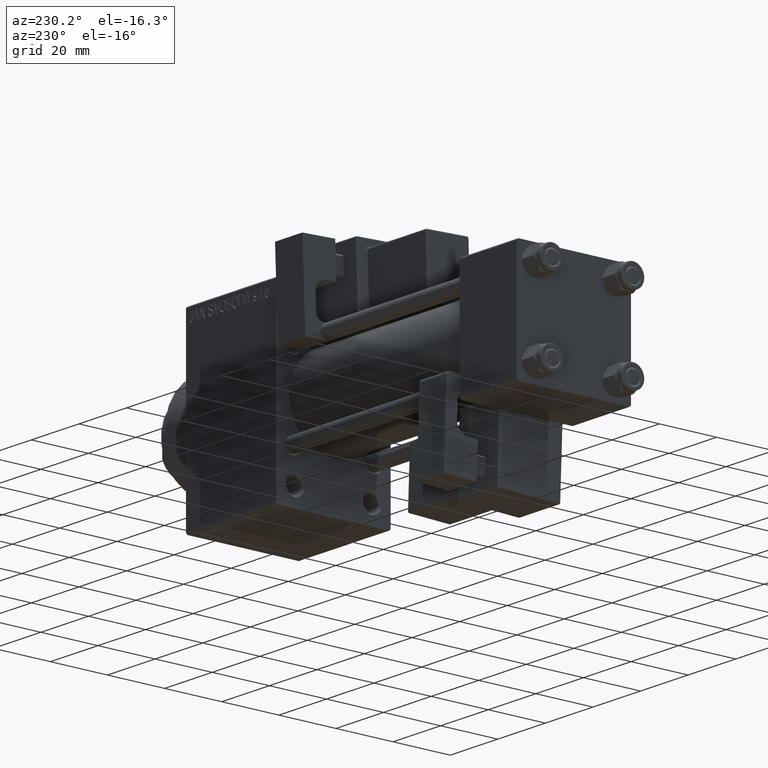
[diagram: clean part render]
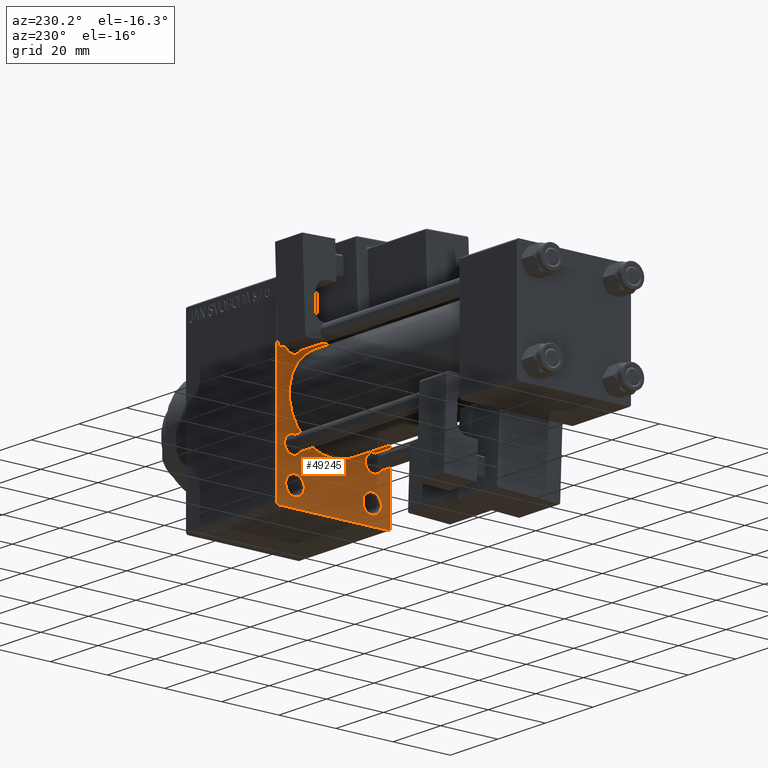
[diagram: same view with one face highlighted and labeled with its STEP entity id]
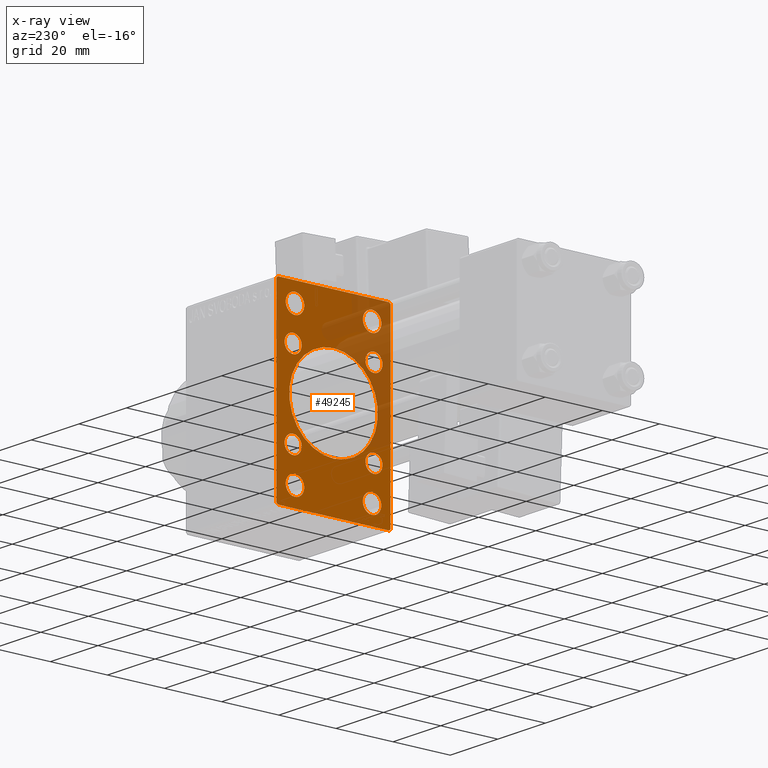
[diagram: x-ray of the same camera — body ghosted, the highlighted face saturated]
A machine part, auxiliary view. The second image highlights one B-rep face of the part: STEP entity #49245.
The next image is the same camera in x-ray: the body ghosted, the highlighted face saturated — about 26% of this face is hidden behind the body in this view.
In plain terms, the highlighted planar face has unit normal (-1, 0, 0).
Its self-contained STEP definition (entity closure, byte-faithful):
#191 = CARTESIAN_POINT ( 'NONE',  ( 101.0000000000000000, -14.15000000000000036, -11.14999999999999680 ) ) ;
#362 = ORIENTED_EDGE ( 'NONE', *, *, #22924, .T. ) ;
#535 = EDGE_CURVE ( 'NONE', #3971, #13510, #27942, .T. ) ;
#575 = ORIENTED_EDGE ( 'NONE', *, *, #25857, .F. ) ;
#1027 = AXIS2_PLACEMENT_3D ( 'NONE', #40263, #10536, #14042 ) ;
#1313 = CARTESIAN_POINT ( 'NONE',  ( 101.0000000000000000, -14.15000000000000036, 11.14999999999999503 ) ) ;
#1643 = DIRECTION ( 'NONE',  ( 1.000000000000000000, 0.000000000000000000, 0.000000000000000000 ) ) ;
#2455 = AXIS2_PLACEMENT_3D ( 'NONE', #40482, #6770, #29031 ) ;
#2719 = CARTESIAN_POINT ( 'NONE',  ( 101.0000000000000000, 14.15000000000000036, 11.14999999999999680 ) ) ;
#2819 = DIRECTION ( 'NONE',  ( -0.000000000000000000, -0.7071067811865474617, -0.7071067811865474617 ) ) ;
#2867 = DIRECTION ( 'NONE',  ( -1.000000000000000000, 0.000000000000000000, -0.000000000000000000 ) ) ;
#3022 = CARTESIAN_POINT ( 'NONE',  ( 101.0000000000000000, -13.50000000000000533, -25.49999999999999645 ) ) ;
#3181 = EDGE_CURVE ( 'NONE', #47418, #41160, #27229, .T. ) ;
#3474 = VERTEX_POINT ( 'NONE', #40043 ) ;
#3654 = EDGE_CURVE ( 'NONE', #44871, #9551, #16838, .T. ) ;
#3781 = VERTEX_POINT ( 'NONE', #191 ) ;
#3858 = VECTOR ( 'NONE', #24635, 1000.000000000000000 ) ;
#3971 = VERTEX_POINT ( 'NONE', #45310 ) ;
#4657 = EDGE_CURVE ( 'NONE', #13362, #37885, #31920, .T. ) ;
#4692 = CARTESIAN_POINT ( 'NONE',  ( 101.0000000000000000, 13.49999999999999822, 25.50000000000000355 ) ) ;
#5293 = VERTEX_POINT ( 'NONE', #36551 ) ;
#5330 = DIRECTION ( 'NONE',  ( 0.000000000000000000, -1.000000000000000000, 0.000000000000000000 ) ) ;
#6722 = EDGE_LOOP ( 'NONE', ( #28576, #18455 ) ) ;
#6770 = DIRECTION ( 'NONE',  ( 1.000000000000000000, 0.000000000000000000, 0.000000000000000000 ) ) ;
#6942 = LINE ( 'NONE', #33690, #21190 ) ;
#7095 = FACE_BOUND ( 'NONE', #45889, .T. ) ;
#7475 = CARTESIAN_POINT ( 'NONE',  ( 101.0000000000000000, 19.50000000000000000, 32.00000000000000000 ) ) ;
#7759 = DIRECTION ( 'NONE',  ( 0.000000000000000000, 0.000000000000000000, 1.000000000000000000 ) ) ;
#7809 = EDGE_LOOP ( 'NONE', ( #362, #48441 ) ) ;
#7892 = CIRCLE ( 'NONE', #41365, 3.249999999999961364 ) ;
#7925 = EDGE_LOOP ( 'NONE', ( #18374, #24016 ) ) ;
#8032 = CARTESIAN_POINT ( 'NONE',  ( 101.0000000000000000, -14.15000000000000036, 17.15000000000000568 ) ) ;
#8182 = CIRCLE ( 'NONE', #40051, 3.000000000000004441 ) ;
#8191 = EDGE_CURVE ( 'NONE', #34086, #36493, #34441, .T. ) ;
#8471 = LINE ( 'NONE', #13389, #25792 ) ;
#8723 = CARTESIAN_POINT ( 'NONE',  ( 101.0000000000000000, -14.15000000000000036, -14.15000000000000036 ) ) ;
#9329 = AXIS2_PLACEMENT_3D ( 'NONE', #18513, #14769, #7759 ) ;
#9381 = ORIENTED_EDGE ( 'NONE', *, *, #3654, .T. ) ;
#9551 = VERTEX_POINT ( 'NONE', #38228 ) ;
#9694 = DIRECTION ( 'NONE',  ( 1.000000000000000000, 0.000000000000000000, 0.000000000000000000 ) ) ;
#9913 = CIRCLE ( 'NONE', #16306, 3.000000000000004441 ) ;
#10038 = CARTESIAN_POINT ( 'NONE',  ( 101.0000000000000000, 20.00000000000000000, 31.50000000000000000 ) ) ;
#10317 = VERTEX_POINT ( 'NONE', #32365 ) ;
#10325 = VECTOR ( 'NONE', #5330, 1000.000000000000000 ) ;
#10536 = DIRECTION ( 'NONE',  ( 1.000000000000000000, 0.000000000000000000, 0.000000000000000000 ) ) ;
#11163 = CARTESIAN_POINT ( 'NONE',  ( 101.0000000000000000, 13.49999999999999822, -28.75000000000000000 ) ) ;
#11186 = DIRECTION ( 'NONE',  ( 1.000000000000000000, 0.000000000000000000, 0.000000000000000000 ) ) ;
#11378 = CIRCLE ( 'NONE', #44781, 3.000000000000004441 ) ;
#11554 = EDGE_CURVE ( 'NONE', #5293, #38570, #18044, .T. ) ;
#11638 = CIRCLE ( 'NONE', #23657, 3.249999999999961364 ) ;
#12274 = ORIENTED_EDGE ( 'NONE', *, *, #535, .T. ) ;
#12659 = DIRECTION ( 'NONE',  ( 0.000000000000000000, -1.000000000000000000, -1.734723475976807094E-16 ) ) ;
#12712 = CARTESIAN_POINT ( 'NONE',  ( 101.0000000000000000, 13.49999999999999822, -25.50000000000000000 ) ) ;
#12742 = CARTESIAN_POINT ( 'NONE',  ( 101.0000000000000000, -20.00000000000000000, 31.49999999999999289 ) ) ;
#12844 = CARTESIAN_POINT ( 'NONE',  ( 101.0000000000000000, -13.50000000000000178, 25.50000000000000355 ) ) ;
#12869 = EDGE_CURVE ( 'NONE', #48114, #29176, #29036, .T. ) ;
#12900 = AXIS2_PLACEMENT_3D ( 'NONE', #42750, #26615, #23549 ) ;
#13362 = VERTEX_POINT ( 'NONE', #27326 ) ;
#13389 = CARTESIAN_POINT ( 'NONE',  ( 101.0000000000000000, 20.00000000000000000, 32.00000000000000000 ) ) ;
#13510 = VERTEX_POINT ( 'NONE', #46632 ) ;
#13602 = CIRCLE ( 'NONE', #2455, 3.250000000000002665 ) ;
#14042 = DIRECTION ( 'NONE',  ( 0.000000000000000000, 0.000000000000000000, 1.000000000000000000 ) ) ;
#14355 = DIRECTION ( 'NONE',  ( -0.000000000000000000, 0.000000000000000000, 1.000000000000000000 ) ) ;
#14479 = EDGE_CURVE ( 'NONE', #17905, #28100, #6942, .T. ) ;
#14597 = FACE_BOUND ( 'NONE', #47766, .T. ) ;
#14735 = VECTOR ( 'NONE', #35324, 1000.000000000000114 ) ;
#14769 = DIRECTION ( 'NONE',  ( 1.000000000000000000, 0.000000000000000000, 0.000000000000000000 ) ) ;
#14784 = DIRECTION ( 'NONE',  ( 0.000000000000000000, 0.000000000000000000, 1.000000000000000000 ) ) ;
#15021 = CIRCLE ( 'NONE', #34975, 3.000000000000004441 ) ;
#15082 = FACE_BOUND ( 'NONE', #33617, .T. ) ;
#15198 = CARTESIAN_POINT ( 'NONE',  ( 101.0000000000000000, 14.15000000000000036, 14.15000000000000036 ) ) ;
#15863 = EDGE_CURVE ( 'NONE', #10317, #28487, #11638, .T. ) ;
#16306 = AXIS2_PLACEMENT_3D ( 'NONE', #24537, #43729, #16777 ) ;
#16405 = LINE ( 'NONE', #46856, #27966 ) ;
#16670 = CARTESIAN_POINT ( 'NONE',  ( 101.0000000000000000, -14.15000000000000036, -14.15000000000000036 ) ) ;
#16777 = DIRECTION ( 'NONE',  ( 0.000000000000000000, 0.000000000000000000, 1.000000000000000000 ) ) ;
#16824 = CARTESIAN_POINT ( 'NONE',  ( 101.0000000000000000, 20.00000000000000000, -32.00000000000000000 ) ) ;
#16838 = CIRCLE ( 'NONE', #47007, 3.250000000000002665 ) ;
#17305 = CARTESIAN_POINT ( 'NONE',  ( 101.0000000000000000, -2.602085213965210642E-15, 0.000000000000000000 ) ) ;
#17753 = EDGE_CURVE ( 'NONE', #41160, #47418, #25323, .T. ) ;
#17905 = VERTEX_POINT ( 'NONE', #12742 ) ;
#18044 = LINE ( 'NONE', #45484, #37697 ) ;
#18374 = ORIENTED_EDGE ( 'NONE', *, *, #24400, .T. ) ;
#18455 = ORIENTED_EDGE ( 'NONE', *, *, #12869, .T. ) ;
#18513 = CARTESIAN_POINT ( 'NONE',  ( 101.0000000000000000, 14.15000000000000036, -14.15000000000000036 ) ) ;
#18530 = DIRECTION ( 'NONE',  ( 1.000000000000000000, 0.000000000000000000, 0.000000000000000000 ) ) ;
#18946 = DIRECTION ( 'NONE',  ( 1.000000000000000000, 0.000000000000000000, 0.000000000000000000 ) ) ;
#19557 = CARTESIAN_POINT ( 'NONE',  ( 101.0000000000000000, -2.602085213965210642E-15, 0.000000000000000000 ) ) ;
#19879 = CARTESIAN_POINT ( 'NONE',  ( 101.0000000000000000, -19.50000000000000000, -32.00000000000000000 ) ) ;
#20868 = DIRECTION ( 'NONE',  ( 1.000000000000000000, 0.000000000000000000, 0.000000000000000000 ) ) ;
#21019 = CARTESIAN_POINT ( 'NONE',  ( 101.0000000000000000, 13.49999999999999822, 28.75000000000000711 ) ) ;
#21026 = DIRECTION ( 'NONE',  ( 1.000000000000000000, 0.000000000000000000, 0.000000000000000000 ) ) ;
#21141 = DIRECTION ( 'NONE',  ( 0.000000000000000000, 0.000000000000000000, 1.000000000000000000 ) ) ;
#21190 = VECTOR ( 'NONE', #22195, 1000.000000000000114 ) ;
#22195 = DIRECTION ( 'NONE',  ( -0.000000000000000000, 0.7071067811865474617, 0.7071067811865474617 ) ) ;
#22218 = VERTEX_POINT ( 'NONE', #43021 ) ;
#22317 = VECTOR ( 'NONE', #44748, 1000.000000000000000 ) ;
#22345 = FACE_BOUND ( 'NONE', #6722, .T. ) ;
#22357 = AXIS2_PLACEMENT_3D ( 'NONE', #3022, #21026, #36247 ) ;
#22924 = EDGE_CURVE ( 'NONE', #3781, #3474, #29386, .T. ) ;
#23549 = DIRECTION ( 'NONE',  ( 0.000000000000000000, 0.000000000000000000, 1.000000000000000000 ) ) ;
#23657 = AXIS2_PLACEMENT_3D ( 'NONE', #12844, #39806, #35819 ) ;
#23782 = EDGE_CURVE ( 'NONE', #36493, #34086, #15021, .T. ) ;
#24016 = ORIENTED_EDGE ( 'NONE', *, *, #15863, .T. ) ;
#24181 = CIRCLE ( 'NONE', #1027, 3.250000000000002665 ) ;
#24328 = ORIENTED_EDGE ( 'NONE', *, *, #25929, .T. ) ;
#24400 = EDGE_CURVE ( 'NONE', #28487, #10317, #7892, .T. ) ;
#24537 = CARTESIAN_POINT ( 'NONE',  ( 101.0000000000000000, -14.15000000000000036, 14.15000000000000036 ) ) ;
#24635 = DIRECTION ( 'NONE',  ( 0.000000000000000000, -0.7071067811865524577, 0.7071067811865426878 ) ) ;
#25125 = LINE ( 'NONE', #40328, #3858 ) ;
#25173 = CARTESIAN_POINT ( 'NONE',  ( 101.0000000000000000, -14.15000000000000036, 14.15000000000000036 ) ) ;
#25323 = CIRCLE ( 'NONE', #9329, 3.000000000000004441 ) ;
#25537 = CIRCLE ( 'NONE', #44641, 3.250000000000002665 ) ;
#25756 = EDGE_CURVE ( 'NONE', #38570, #35248, #40030, .T. ) ;
#25792 = VECTOR ( 'NONE', #43844, 1000.000000000000000 ) ;
#25857 = EDGE_CURVE ( 'NONE', #17905, #22218, #28084, .T. ) ;
#25863 = CARTESIAN_POINT ( 'NONE',  ( 101.0000000000000000, 0.000000000000000000, 0.000000000000000000 ) ) ;
#25929 = EDGE_CURVE ( 'NONE', #9551, #44871, #25537, .T. ) ;
#26113 = ORIENTED_EDGE ( 'NONE', *, *, #35038, .T. ) ;
#26203 = ORIENTED_EDGE ( 'NONE', *, *, #41212, .T. ) ;
#26615 = DIRECTION ( 'NONE',  ( 1.000000000000000000, 0.000000000000000000, 0.000000000000000000 ) ) ;
#27143 = ORIENTED_EDGE ( 'NONE', *, *, #11554, .T. ) ;
#27222 = EDGE_CURVE ( 'NONE', #40852, #28100, #16405, .T. ) ;
#27229 = CIRCLE ( 'NONE', #35168, 3.000000000000004441 ) ;
#27320 = DIRECTION ( 'NONE',  ( 0.000000000000000000, 0.000000000000000000, -1.000000000000000000 ) ) ;
#27326 = CARTESIAN_POINT ( 'NONE',  ( 101.0000000000000000, -13.50000000000000533, -28.74999999999999645 ) ) ;
#27740 = VERTEX_POINT ( 'NONE', #1313 ) ;
#27762 = EDGE_LOOP ( 'NONE', ( #35245, #43820 ) ) ;
#27793 = EDGE_CURVE ( 'NONE', #29176, #48114, #13602, .T. ) ;
#27942 = CIRCLE ( 'NONE', #41452, 15.50000000000000000 ) ;
#27966 = VECTOR ( 'NONE', #12659, 1000.000000000000000 ) ;
#27973 = DIRECTION ( 'NONE',  ( 0.000000000000000000, 0.000000000000000000, 1.000000000000000000 ) ) ;
#28084 = LINE ( 'NONE', #44260, #22317 ) ;
#28100 = VERTEX_POINT ( 'NONE', #41101 ) ;
#28371 = DIRECTION ( 'NONE',  ( 0.000000000000000000, 0.000000000000000000, 1.000000000000000000 ) ) ;
#28373 = DIRECTION ( 'NONE',  ( 0.000000000000000000, 0.000000000000000000, 1.000000000000000000 ) ) ;
#28454 = EDGE_CURVE ( 'NONE', #13510, #3971, #48698, .T. ) ;
#28487 = VERTEX_POINT ( 'NONE', #34053 ) ;
#28576 = ORIENTED_EDGE ( 'NONE', *, *, #27793, .T. ) ;
#29031 = DIRECTION ( 'NONE',  ( 0.000000000000000000, 0.000000000000000000, 1.000000000000000000 ) ) ;
#29036 = CIRCLE ( 'NONE', #48956, 3.250000000000002665 ) ;
#29176 = VERTEX_POINT ( 'NONE', #21019 ) ;
#29304 = DIRECTION ( 'NONE',  ( 1.000000000000000000, 0.000000000000000000, 0.000000000000000000 ) ) ;
#29351 = CARTESIAN_POINT ( 'NONE',  ( 101.0000000000000000, 14.15000000000000036, -14.15000000000000036 ) ) ;
#29386 = CIRCLE ( 'NONE', #29419, 3.000000000000004441 ) ;
#29419 = AXIS2_PLACEMENT_3D ( 'NONE', #16670, #39889, #36145 ) ;
#29462 = ORIENTED_EDGE ( 'NONE', *, *, #25756, .T. ) ;
#29848 = PLANE ( 'NONE',  #31795 ) ;
#29962 = DIRECTION ( 'NONE',  ( 0.000000000000000000, 0.000000000000000000, 1.000000000000000000 ) ) ;
#29968 = CARTESIAN_POINT ( 'NONE',  ( 101.0000000000000000, 14.15000000000000036, -17.15000000000000568 ) ) ;
#30847 = ORIENTED_EDGE ( 'NONE', *, *, #8191, .T. ) ;
#31795 = AXIS2_PLACEMENT_3D ( 'NONE', #25863, #2867, #14355 ) ;
#31831 = LINE ( 'NONE', #39545, #14735 ) ;
#31920 = CIRCLE ( 'NONE', #22357, 3.250000000000002665 ) ;
#32365 = CARTESIAN_POINT ( 'NONE',  ( 101.0000000000000000, -13.50000000000000178, 22.25000000000003908 ) ) ;
#33084 = ORIENTED_EDGE ( 'NONE', *, *, #23782, .T. ) ;
#33092 = EDGE_CURVE ( 'NONE', #40380, #5293, #8471, .T. ) ;
#33106 = EDGE_CURVE ( 'NONE', #3474, #3781, #11378, .T. ) ;
#33348 = FACE_OUTER_BOUND ( 'NONE', #47955, .T. ) ;
#33617 = EDGE_LOOP ( 'NONE', ( #33084, #30847 ) ) ;
#33690 = CARTESIAN_POINT ( 'NONE',  ( 101.0000000000000000, -25.75000000000000000, 25.75000000000000000 ) ) ;
#33832 = FACE_BOUND ( 'NONE', #7925, .T. ) ;
#33833 = CARTESIAN_POINT ( 'NONE',  ( 101.0000000000000000, 14.15000000000000036, 17.15000000000000568 ) ) ;
#34053 = CARTESIAN_POINT ( 'NONE',  ( 101.0000000000000000, -13.50000000000000178, 28.74999999999996447 ) ) ;
#34086 = VERTEX_POINT ( 'NONE', #2719 ) ;
#34441 = CIRCLE ( 'NONE', #12900, 3.000000000000004441 ) ;
#34685 = ORIENTED_EDGE ( 'NONE', *, *, #49160, .T. ) ;
#34821 = ORIENTED_EDGE ( 'NONE', *, *, #33092, .T. ) ;
#34975 = AXIS2_PLACEMENT_3D ( 'NONE', #15198, #18946, #29962 ) ;
#35038 = EDGE_CURVE ( 'NONE', #27740, #43277, #8182, .T. ) ;
#35168 = AXIS2_PLACEMENT_3D ( 'NONE', #29351, #20868, #28371 ) ;
#35245 = ORIENTED_EDGE ( 'NONE', *, *, #17753, .T. ) ;
#35248 = VERTEX_POINT ( 'NONE', #19879 ) ;
#35324 = DIRECTION ( 'NONE',  ( 0.000000000000000000, 0.7071067811865474617, -0.7071067811865474617 ) ) ;
#35676 = EDGE_CURVE ( 'NONE', #37885, #13362, #24181, .T. ) ;
#35819 = DIRECTION ( 'NONE',  ( 0.000000000000000000, 0.000000000000000000, 1.000000000000000000 ) ) ;
#36145 = DIRECTION ( 'NONE',  ( 0.000000000000000000, 0.000000000000000000, 1.000000000000000000 ) ) ;
#36247 = DIRECTION ( 'NONE',  ( 0.000000000000000000, 0.000000000000000000, 1.000000000000000000 ) ) ;
#36493 = VERTEX_POINT ( 'NONE', #33833 ) ;
#36551 = CARTESIAN_POINT ( 'NONE',  ( 101.0000000000000000, 20.00000000000000000, -31.50000000000000000 ) ) ;
#36824 = FACE_BOUND ( 'NONE', #27762, .T. ) ;
#36899 = CARTESIAN_POINT ( 'NONE',  ( 101.0000000000000000, 14.15000000000000036, -11.14999999999999680 ) ) ;
#37226 = ORIENTED_EDGE ( 'NONE', *, *, #28454, .T. ) ;
#37697 = VECTOR ( 'NONE', #2819, 1000.000000000000114 ) ;
#37783 = DIRECTION ( 'NONE',  ( 1.000000000000000000, 0.000000000000000000, 0.000000000000000000 ) ) ;
#37885 = VERTEX_POINT ( 'NONE', #43769 ) ;
#38228 = CARTESIAN_POINT ( 'NONE',  ( 101.0000000000000000, 13.49999999999999822, -22.24999999999999645 ) ) ;
#38570 = VERTEX_POINT ( 'NONE', #40586 ) ;
#39191 = DIRECTION ( 'NONE',  ( 1.000000000000000000, 0.000000000000000000, 0.000000000000000000 ) ) ;
#39545 = CARTESIAN_POINT ( 'NONE',  ( 101.0000000000000000, 25.75000000000000000, 25.75000000000000000 ) ) ;
#39714 = ORIENTED_EDGE ( 'NONE', *, *, #4657, .T. ) ;
#39798 = EDGE_CURVE ( 'NONE', #43277, #27740, #9913, .T. ) ;
#39806 = DIRECTION ( 'NONE',  ( 1.000000000000000000, 0.000000000000000000, 0.000000000000000000 ) ) ;
#39889 = DIRECTION ( 'NONE',  ( 1.000000000000000000, 0.000000000000000000, 0.000000000000000000 ) ) ;
#40030 = LINE ( 'NONE', #16824, #10325 ) ;
#40043 = CARTESIAN_POINT ( 'NONE',  ( 101.0000000000000000, -14.15000000000000036, -17.15000000000000568 ) ) ;
#40051 = AXIS2_PLACEMENT_3D ( 'NONE', #25173, #41116, #47856 ) ;
#40140 = ORIENTED_EDGE ( 'NONE', *, *, #27222, .F. ) ;
#40263 = CARTESIAN_POINT ( 'NONE',  ( 101.0000000000000000, -13.50000000000000533, -25.49999999999999645 ) ) ;
#40275 = DIRECTION ( 'NONE',  ( 0.000000000000000000, 0.000000000000000000, -1.000000000000000000 ) ) ;
#40328 = CARTESIAN_POINT ( 'NONE',  ( 101.0000000000000000, -25.74999999999986500, -25.75000000000022027 ) ) ;
#40380 = VERTEX_POINT ( 'NONE', #10038 ) ;
#40482 = CARTESIAN_POINT ( 'NONE',  ( 101.0000000000000000, 13.49999999999999822, 25.50000000000000355 ) ) ;
#40586 = CARTESIAN_POINT ( 'NONE',  ( 101.0000000000000000, 19.50000000000000000, -32.00000000000000000 ) ) ;
#40606 = ORIENTED_EDGE ( 'NONE', *, *, #39798, .T. ) ;
#40852 = VERTEX_POINT ( 'NONE', #7475 ) ;
#41101 = CARTESIAN_POINT ( 'NONE',  ( 101.0000000000000000, -19.50000000000000000, 31.99999999999999289 ) ) ;
#41116 = DIRECTION ( 'NONE',  ( 1.000000000000000000, 0.000000000000000000, 0.000000000000000000 ) ) ;
#41160 = VERTEX_POINT ( 'NONE', #36899 ) ;
#41212 = EDGE_CURVE ( 'NONE', #40852, #40380, #31831, .T. ) ;
#41365 = AXIS2_PLACEMENT_3D ( 'NONE', #47074, #1643, #28373 ) ;
#41452 = AXIS2_PLACEMENT_3D ( 'NONE', #17305, #29304, #40275 ) ;
#41659 = DIRECTION ( 'NONE',  ( 0.000000000000000000, 0.000000000000000000, 1.000000000000000000 ) ) ;
#41741 = CARTESIAN_POINT ( 'NONE',  ( 101.0000000000000000, 13.49999999999999822, 22.25000000000000355 ) ) ;
#42750 = CARTESIAN_POINT ( 'NONE',  ( 101.0000000000000000, 14.15000000000000036, 14.15000000000000036 ) ) ;
#43021 = CARTESIAN_POINT ( 'NONE',  ( 101.0000000000000000, -20.00000000000000000, -31.50000000000000711 ) ) ;
#43277 = VERTEX_POINT ( 'NONE', #8032 ) ;
#43729 = DIRECTION ( 'NONE',  ( 1.000000000000000000, 0.000000000000000000, 0.000000000000000000 ) ) ;
#43769 = CARTESIAN_POINT ( 'NONE',  ( 101.0000000000000000, -13.50000000000000533, -22.24999999999999289 ) ) ;
#43820 = ORIENTED_EDGE ( 'NONE', *, *, #3181, .T. ) ;
#43844 = DIRECTION ( 'NONE',  ( 0.000000000000000000, 0.000000000000000000, -1.000000000000000000 ) ) ;
#44260 = CARTESIAN_POINT ( 'NONE',  ( 101.0000000000000000, -20.00000000000000000, 31.99999999999999289 ) ) ;
#44641 = AXIS2_PLACEMENT_3D ( 'NONE', #49221, #18530, #14784 ) ;
#44748 = DIRECTION ( 'NONE',  ( 0.000000000000000000, 0.000000000000000000, -1.000000000000000000 ) ) ;
#44781 = AXIS2_PLACEMENT_3D ( 'NONE', #8723, #39191, #21141 ) ;
#44859 = ORIENTED_EDGE ( 'NONE', *, *, #14479, .T. ) ;
#44871 = VERTEX_POINT ( 'NONE', #11163 ) ;
#45310 = CARTESIAN_POINT ( 'NONE',  ( 101.0000000000000000, -2.602085213965210642E-15, 15.50000000000000000 ) ) ;
#45484 = CARTESIAN_POINT ( 'NONE',  ( 101.0000000000000000, 25.75000000000000000, -25.75000000000000000 ) ) ;
#45495 = AXIS2_PLACEMENT_3D ( 'NONE', #19557, #37783, #27320 ) ;
#45517 = EDGE_LOOP ( 'NONE', ( #48034, #39714 ) ) ;
#45538 = FACE_BOUND ( 'NONE', #7809, .T. ) ;
#45889 = EDGE_LOOP ( 'NONE', ( #12274, #37226 ) ) ;
#45954 = EDGE_LOOP ( 'NONE', ( #24328, #9381 ) ) ;
#46632 = CARTESIAN_POINT ( 'NONE',  ( 101.0000000000000000, -7.038826752868131828E-16, -15.50000000000000000 ) ) ;
#46856 = CARTESIAN_POINT ( 'NONE',  ( 101.0000000000000000, 20.00000000000000000, 32.00000000000000000 ) ) ;
#47007 = AXIS2_PLACEMENT_3D ( 'NONE', #12712, #9694, #27973 ) ;
#47074 = CARTESIAN_POINT ( 'NONE',  ( 101.0000000000000000, -13.50000000000000178, 25.50000000000000355 ) ) ;
#47418 = VERTEX_POINT ( 'NONE', #29968 ) ;
#47766 = EDGE_LOOP ( 'NONE', ( #40606, #26113 ) ) ;
#47856 = DIRECTION ( 'NONE',  ( 0.000000000000000000, 0.000000000000000000, 1.000000000000000000 ) ) ;
#47955 = EDGE_LOOP ( 'NONE', ( #29462, #34685, #575, #44859, #40140, #26203, #34821, #27143 ) ) ;
#48034 = ORIENTED_EDGE ( 'NONE', *, *, #35676, .T. ) ;
#48114 = VERTEX_POINT ( 'NONE', #41741 ) ;
#48441 = ORIENTED_EDGE ( 'NONE', *, *, #33106, .T. ) ;
#48698 = CIRCLE ( 'NONE', #45495, 15.50000000000000000 ) ;
#48787 = FACE_BOUND ( 'NONE', #45517, .T. ) ;
#48956 = AXIS2_PLACEMENT_3D ( 'NONE', #4692, #11186, #41659 ) ;
#49028 = FACE_BOUND ( 'NONE', #45954, .T. ) ;
#49160 = EDGE_CURVE ( 'NONE', #35248, #22218, #25125, .T. ) ;
#49221 = CARTESIAN_POINT ( 'NONE',  ( 101.0000000000000000, 13.49999999999999822, -25.50000000000000000 ) ) ;
#49245 = ADVANCED_FACE ( 'NONE', ( #33832, #48787, #49028, #22345, #14597, #15082, #36824, #45538, #7095, #33348 ), #29848, .T. ) ;